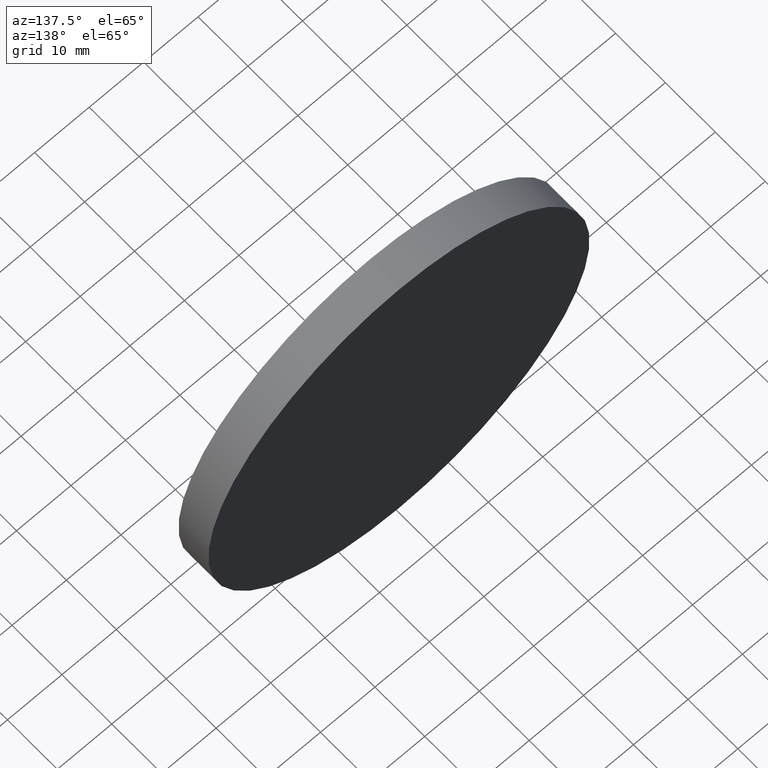
[diagram: clean part render]
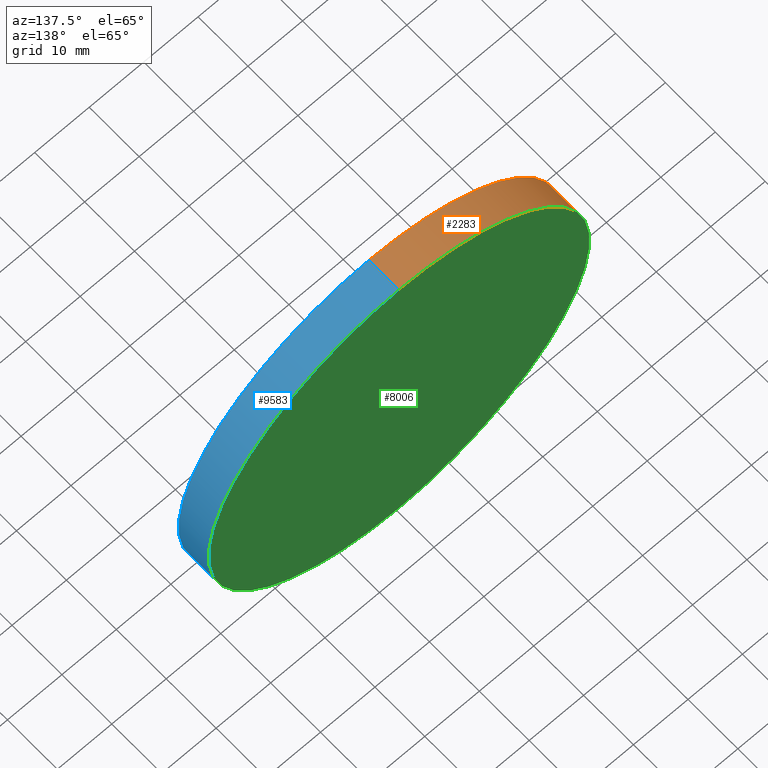
[diagram: same view with three faces highlighted in distinct colors, each labeled with its STEP entity id]
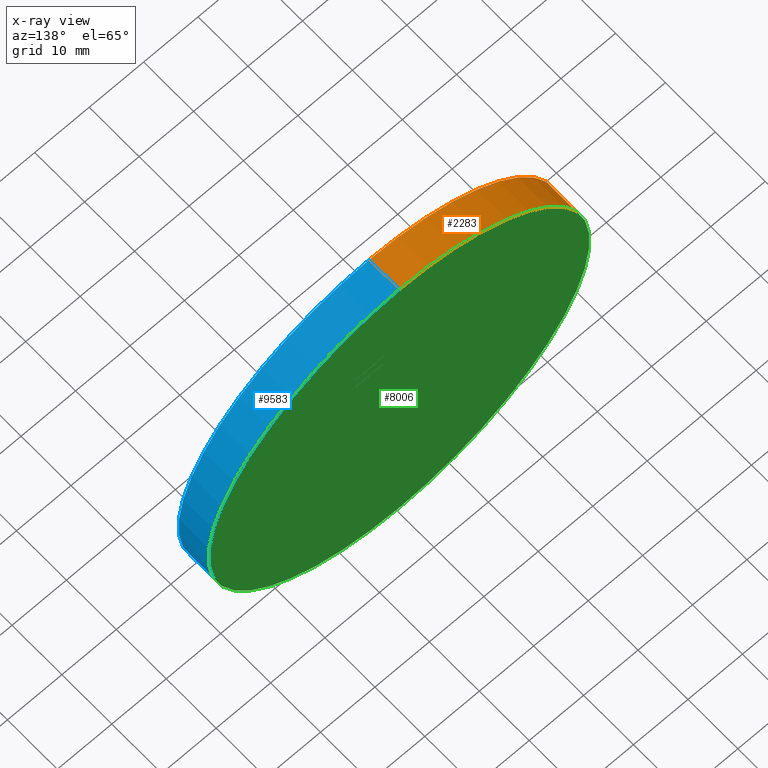
[diagram: x-ray of the same camera — body ghosted, the three highlighted faces saturated]
A machine part, auxiliary view with three faces highlighted in distinct colors.
The next image is the same camera in x-ray (body ghosted, the three faces saturated) — at least one of them is partly hidden behind the body in this view.
Their STEP definitions:

[orange] entity #2283 — the highlighted cylindrical surface (partial cylindrical patch) has radius 35 mm, axis along (-0, -1, -0).
#543 = VERTEX_POINT ( 'NONE', #2088 ) ;
#547 = AXIS2_PLACEMENT_3D ( 'NONE', #3941, #4850, #11851 ) ;
#681 = CIRCLE ( 'NONE', #2628, 35.00000000000000711 ) ;
#751 = DIRECTION ( 'NONE',  ( 0.000000000000000000, 0.000000000000000000, 1.000000000000000000 ) ) ;
#1858 = VERTEX_POINT ( 'NONE', #8615 ) ;
#1936 = EDGE_CURVE ( 'NONE', #543, #1858, #681, .T. ) ;
#2088 = CARTESIAN_POINT ( 'NONE',  ( 0.000000000000000000, -3.000000000000000000, -35.00000000000000711 ) ) ;
#2283 = ADVANCED_FACE ( 'NONE', ( #5817 ), #3518, .T. ) ;
#2628 = AXIS2_PLACEMENT_3D ( 'NONE', #12662, #4867, #751 ) ;
#3180 = CARTESIAN_POINT ( 'NONE',  ( 0.000000000000000000, 3.000000000000000000, 0.000000000000000000 ) ) ;
#3404 = EDGE_CURVE ( 'NONE', #10472, #1858, #4519, .T. ) ;
#3518 = CYLINDRICAL_SURFACE ( 'NONE', #6604, 35.00000000000000711 ) ;
#3941 = CARTESIAN_POINT ( 'NONE',  ( 0.000000000000000000, 3.000000000000000000, 0.000000000000000000 ) ) ;
#4519 = LINE ( 'NONE', #11252, #6618 ) ;
#4850 = DIRECTION ( 'NONE',  ( 0.000000000000000000, 1.000000000000000000, 0.000000000000000000 ) ) ;
#4867 = DIRECTION ( 'NONE',  ( 0.000000000000000000, 1.000000000000000000, 0.000000000000000000 ) ) ;
#5097 = DIRECTION ( 'NONE',  ( -0.000000000000000000, -1.000000000000000000, -0.000000000000000000 ) ) ;
#5191 = EDGE_CURVE ( 'NONE', #11677, #543, #6429, .T. ) ;
#5817 = FACE_OUTER_BOUND ( 'NONE', #6868, .T. ) ;
#6429 = LINE ( 'NONE', #10030, #8896 ) ;
#6604 = AXIS2_PLACEMENT_3D ( 'NONE', #3180, #10984, #7076 ) ;
#6615 = ORIENTED_EDGE ( 'NONE', *, *, #3404, .F. ) ;
#6618 = VECTOR ( 'NONE', #12285, 1000.000000000000000 ) ;
#6868 = EDGE_LOOP ( 'NONE', ( #6615, #9236, #7450, #8775 ) ) ;
#7076 = DIRECTION ( 'NONE',  ( 0.000000000000000000, 0.000000000000000000, -1.000000000000000000 ) ) ;
#7450 = ORIENTED_EDGE ( 'NONE', *, *, #5191, .T. ) ;
#7903 = EDGE_CURVE ( 'NONE', #11677, #10472, #8874, .T. ) ;
#8615 = CARTESIAN_POINT ( 'NONE',  ( 4.286263797015737285E-15, -3.000000000000000000, 35.00000000000000711 ) ) ;
#8669 = CARTESIAN_POINT ( 'NONE',  ( 0.000000000000000000, 3.000000000000000000, -35.00000000000000711 ) ) ;
#8775 = ORIENTED_EDGE ( 'NONE', *, *, #1936, .T. ) ;
#8874 = CIRCLE ( 'NONE', #547, 35.00000000000000711 ) ;
#8896 = VECTOR ( 'NONE', #5097, 1000.000000000000000 ) ;
#9236 = ORIENTED_EDGE ( 'NONE', *, *, #7903, .F. ) ;
#10030 = CARTESIAN_POINT ( 'NONE',  ( 0.000000000000000000, 3.000000000000000000, -35.00000000000000711 ) ) ;
#10199 = CARTESIAN_POINT ( 'NONE',  ( 4.286263797015737285E-15, 3.000000000000000000, 35.00000000000000711 ) ) ;
#10472 = VERTEX_POINT ( 'NONE', #10199 ) ;
#10984 = DIRECTION ( 'NONE',  ( -0.000000000000000000, -1.000000000000000000, -0.000000000000000000 ) ) ;
#11252 = CARTESIAN_POINT ( 'NONE',  ( 4.286263797015737285E-15, 3.000000000000000000, 35.00000000000000711 ) ) ;
#11677 = VERTEX_POINT ( 'NONE', #8669 ) ;
#11851 = DIRECTION ( 'NONE',  ( 0.000000000000000000, 0.000000000000000000, 1.000000000000000000 ) ) ;
#12285 = DIRECTION ( 'NONE',  ( -0.000000000000000000, -1.000000000000000000, -0.000000000000000000 ) ) ;
#12662 = CARTESIAN_POINT ( 'NONE',  ( 0.000000000000000000, -3.000000000000000000, 0.000000000000000000 ) ) ;

[blue] entity #9583 — the highlighted cylindrical surface (partial cylindrical patch) has radius 35 mm, axis along (-0, -1, -0).
#144 = CARTESIAN_POINT ( 'NONE',  ( 0.000000000000000000, -3.000000000000000000, 0.000000000000000000 ) ) ;
#496 = CARTESIAN_POINT ( 'NONE',  ( 0.000000000000000000, 3.000000000000000000, 0.000000000000000000 ) ) ;
#543 = VERTEX_POINT ( 'NONE', #2088 ) ;
#1606 = DIRECTION ( 'NONE',  ( 0.000000000000000000, 1.000000000000000000, 0.000000000000000000 ) ) ;
#1858 = VERTEX_POINT ( 'NONE', #8615 ) ;
#2088 = CARTESIAN_POINT ( 'NONE',  ( 0.000000000000000000, -3.000000000000000000, -35.00000000000000711 ) ) ;
#2803 = CYLINDRICAL_SURFACE ( 'NONE', #5645, 35.00000000000000711 ) ;
#3404 = EDGE_CURVE ( 'NONE', #10472, #1858, #4519, .T. ) ;
#3569 = DIRECTION ( 'NONE',  ( 0.000000000000000000, 0.000000000000000000, -1.000000000000000000 ) ) ;
#3758 = FACE_OUTER_BOUND ( 'NONE', #4719, .T. ) ;
#4275 = DIRECTION ( 'NONE',  ( 0.000000000000000000, 0.000000000000000000, 1.000000000000000000 ) ) ;
#4519 = LINE ( 'NONE', #11252, #6618 ) ;
#4719 = EDGE_LOOP ( 'NONE', ( #7061, #5036, #6063, #10071 ) ) ;
#5036 = ORIENTED_EDGE ( 'NONE', *, *, #3404, .T. ) ;
#5097 = DIRECTION ( 'NONE',  ( -0.000000000000000000, -1.000000000000000000, -0.000000000000000000 ) ) ;
#5191 = EDGE_CURVE ( 'NONE', #11677, #543, #6429, .T. ) ;
#5502 = CARTESIAN_POINT ( 'NONE',  ( 0.000000000000000000, 3.000000000000000000, 0.000000000000000000 ) ) ;
#5533 = EDGE_CURVE ( 'NONE', #1858, #543, #7959, .T. ) ;
#5589 = CIRCLE ( 'NONE', #8218, 35.00000000000000711 ) ;
#5645 = AXIS2_PLACEMENT_3D ( 'NONE', #5502, #11533, #3569 ) ;
#6063 = ORIENTED_EDGE ( 'NONE', *, *, #5533, .T. ) ;
#6429 = LINE ( 'NONE', #10030, #8896 ) ;
#6618 = VECTOR ( 'NONE', #12285, 1000.000000000000000 ) ;
#6620 = DIRECTION ( 'NONE',  ( 0.000000000000000000, 0.000000000000000000, 1.000000000000000000 ) ) ;
#7061 = ORIENTED_EDGE ( 'NONE', *, *, #10698, .F. ) ;
#7959 = CIRCLE ( 'NONE', #10467, 35.00000000000000711 ) ;
#8218 = AXIS2_PLACEMENT_3D ( 'NONE', #496, #1606, #6620 ) ;
#8615 = CARTESIAN_POINT ( 'NONE',  ( 4.286263797015737285E-15, -3.000000000000000000, 35.00000000000000711 ) ) ;
#8669 = CARTESIAN_POINT ( 'NONE',  ( 0.000000000000000000, 3.000000000000000000, -35.00000000000000711 ) ) ;
#8896 = VECTOR ( 'NONE', #5097, 1000.000000000000000 ) ;
#9583 = ADVANCED_FACE ( 'NONE', ( #3758 ), #2803, .T. ) ;
#10030 = CARTESIAN_POINT ( 'NONE',  ( 0.000000000000000000, 3.000000000000000000, -35.00000000000000711 ) ) ;
#10071 = ORIENTED_EDGE ( 'NONE', *, *, #5191, .F. ) ;
#10199 = CARTESIAN_POINT ( 'NONE',  ( 4.286263797015737285E-15, 3.000000000000000000, 35.00000000000000711 ) ) ;
#10467 = AXIS2_PLACEMENT_3D ( 'NONE', #144, #11061, #4275 ) ;
#10472 = VERTEX_POINT ( 'NONE', #10199 ) ;
#10698 = EDGE_CURVE ( 'NONE', #10472, #11677, #5589, .T. ) ;
#11061 = DIRECTION ( 'NONE',  ( 0.000000000000000000, 1.000000000000000000, 0.000000000000000000 ) ) ;
#11252 = CARTESIAN_POINT ( 'NONE',  ( 4.286263797015737285E-15, 3.000000000000000000, 35.00000000000000711 ) ) ;
#11533 = DIRECTION ( 'NONE',  ( -0.000000000000000000, -1.000000000000000000, -0.000000000000000000 ) ) ;
#11677 = VERTEX_POINT ( 'NONE', #8669 ) ;
#12285 = DIRECTION ( 'NONE',  ( -0.000000000000000000, -1.000000000000000000, -0.000000000000000000 ) ) ;

[green] entity #8006 — the highlighted planar face has unit normal (0, 1, 0).
#496 = CARTESIAN_POINT ( 'NONE',  ( 0.000000000000000000, 3.000000000000000000, 0.000000000000000000 ) ) ;
#547 = AXIS2_PLACEMENT_3D ( 'NONE', #3941, #4850, #11851 ) ;
#1606 = DIRECTION ( 'NONE',  ( 0.000000000000000000, 1.000000000000000000, 0.000000000000000000 ) ) ;
#2045 = FACE_OUTER_BOUND ( 'NONE', #5689, .T. ) ;
#3941 = CARTESIAN_POINT ( 'NONE',  ( 0.000000000000000000, 3.000000000000000000, 0.000000000000000000 ) ) ;
#4850 = DIRECTION ( 'NONE',  ( 0.000000000000000000, 1.000000000000000000, 0.000000000000000000 ) ) ;
#5589 = CIRCLE ( 'NONE', #8218, 35.00000000000000711 ) ;
#5689 = EDGE_LOOP ( 'NONE', ( #10713, #8664 ) ) ;
#5963 = CARTESIAN_POINT ( 'NONE',  ( 0.000000000000000000, 3.000000000000000000, 0.000000000000000000 ) ) ;
#6130 = DIRECTION ( 'NONE',  ( 0.000000000000000000, -0.000000000000000000, 1.000000000000000000 ) ) ;
#6620 = DIRECTION ( 'NONE',  ( 0.000000000000000000, 0.000000000000000000, 1.000000000000000000 ) ) ;
#7903 = EDGE_CURVE ( 'NONE', #11677, #10472, #8874, .T. ) ;
#8006 = ADVANCED_FACE ( 'NONE', ( #2045 ), #9040, .T. ) ;
#8218 = AXIS2_PLACEMENT_3D ( 'NONE', #496, #1606, #6620 ) ;
#8664 = ORIENTED_EDGE ( 'NONE', *, *, #10698, .T. ) ;
#8669 = CARTESIAN_POINT ( 'NONE',  ( 0.000000000000000000, 3.000000000000000000, -35.00000000000000711 ) ) ;
#8874 = CIRCLE ( 'NONE', #547, 35.00000000000000711 ) ;
#9040 = PLANE ( 'NONE',  #12368 ) ;
#10199 = CARTESIAN_POINT ( 'NONE',  ( 4.286263797015737285E-15, 3.000000000000000000, 35.00000000000000711 ) ) ;
#10472 = VERTEX_POINT ( 'NONE', #10199 ) ;
#10698 = EDGE_CURVE ( 'NONE', #10472, #11677, #5589, .T. ) ;
#10713 = ORIENTED_EDGE ( 'NONE', *, *, #7903, .T. ) ;
#11033 = DIRECTION ( 'NONE',  ( 0.000000000000000000, 1.000000000000000000, 0.000000000000000000 ) ) ;
#11677 = VERTEX_POINT ( 'NONE', #8669 ) ;
#11851 = DIRECTION ( 'NONE',  ( 0.000000000000000000, 0.000000000000000000, 1.000000000000000000 ) ) ;
#12368 = AXIS2_PLACEMENT_3D ( 'NONE', #5963, #11033, #6130 ) ;